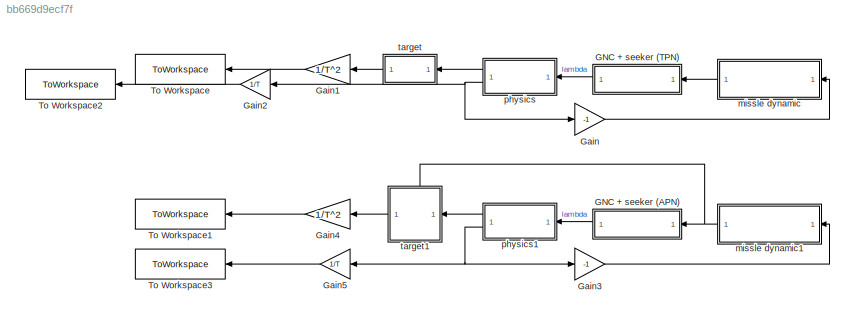
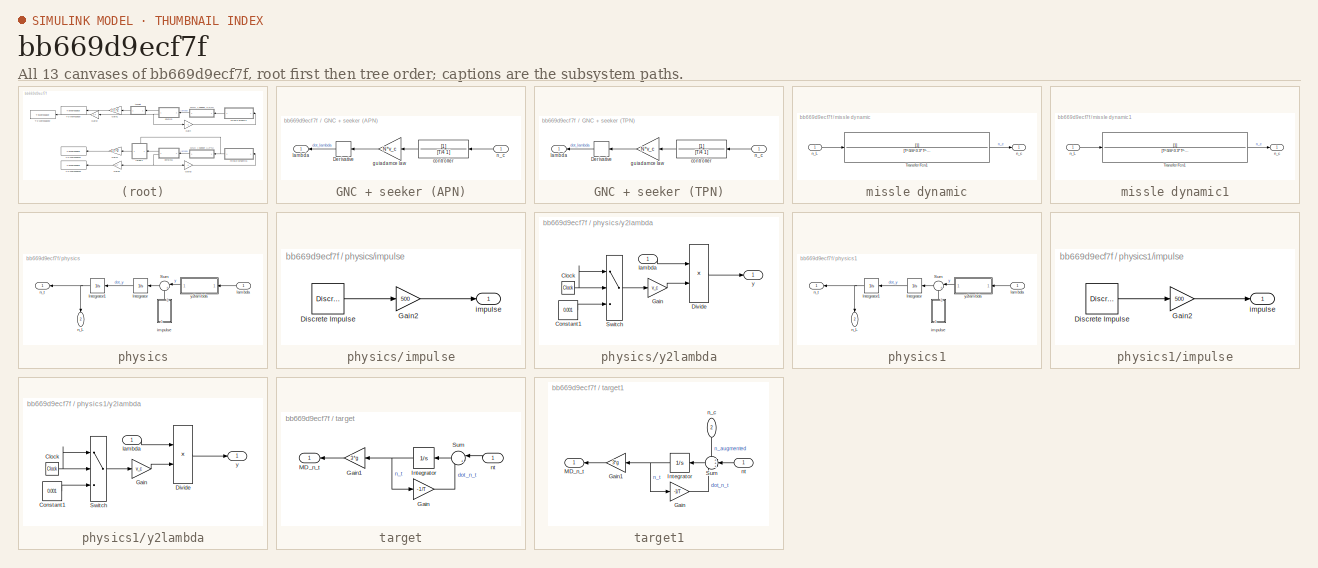
[diagram: thumbnail index - all 13 canvases of the model, root first then tree order]
MODEL slx_bb669d9ecf7f
KIND model
CONFIG AbsTol = auto
CONFIG EnableMultiTasking = off
CONFIG FixedStep = 0.002
CONFIG InitFcn = init;
CONFIG MaxStep = auto
CONFIG MinStep = auto
CONFIG RelTol = 1e-3
CONFIG SampleTimeConstraint = Unconstrained
CONFIG SolverName = ode4
CONFIG StartTime = 0.0
CONFIG StopTime = 15
BLOCK [SubSystem] GNC + seeker (APN)
  NameLocation = top
BLOCK [Derivative] GNC + seeker (APN)/Derivative
  NameLocation = top
BLOCK [TransferFcn] GNC + seeker (APN)/controller
  Denominator = [T/4 1]
  NameLocation = top
BLOCK [Gain] GNC + seeker (APN)/guiadamce law
  Gain = N*v_c
  NameLocation = top
BLOCK [Outport] GNC + seeker (APN)/lambda
  NameLocation = top
BLOCK [Inport] GNC + seeker (APN)/n_c
  NameLocation = top
BLOCK [SubSystem] GNC + seeker (TPN)
  NameLocation = top
BLOCK [Derivative] GNC + seeker (TPN)/Derivative
  NameLocation = top
BLOCK [TransferFcn] GNC + seeker (TPN)/controller
  Denominator = [T/4 1]
  NameLocation = top
BLOCK [Gain] GNC + seeker (TPN)/guiadamce law
  Gain = N*v_c
  NameLocation = top
BLOCK [Outport] GNC + seeker (TPN)/lambda
  NameLocation = top
BLOCK [Inport] GNC + seeker (TPN)/n_c
  NameLocation = top
BLOCK [Gain] Gain
  Gain = -1
BLOCK [Gain] Gain1
  Gain = 1/T^2
  NameLocation = top
BLOCK [Gain] Gain2
  Gain = 1/T
  NameLocation = top
BLOCK [Gain] Gain3
  Gain = -1
BLOCK [Gain] Gain4
  Gain = 1/T^2
  NameLocation = top
BLOCK [Gain] Gain5
  Gain = 1/T
  NameLocation = top
BLOCK [ToWorkspace] To Workspace
  FixptAsFi = on
  MaxDataPoints = inf
  NameLocation = top
  SampleTime = -1
  SaveFormat = Timeseries
  VariableName = n_t_TPN
BLOCK [ToWorkspace] To Workspace1
  FixptAsFi = on
  MaxDataPoints = inf
  NameLocation = top
  SampleTime = -1
  SaveFormat = Timeseries
  VariableName = n_t_APN
BLOCK [ToWorkspace] To Workspace2
  FixptAsFi = on
  MaxDataPoints = inf
  NameLocation = top
  SampleTime = -1
  SaveFormat = Timeseries
  VariableName = HE_TPN
BLOCK [ToWorkspace] To Workspace3
  FixptAsFi = on
  MaxDataPoints = inf
  NameLocation = top
  SampleTime = -1
  SaveFormat = Timeseries
  VariableName = HE_APN
BLOCK [SubSystem] missle dynamic
BLOCK [TransferFcn] missle dynamic/Transfer Fcn1
  Denominator = [T^3/4^3 3*T^2/4^2 3*T/4 1]
BLOCK [Inport] missle dynamic/n_L
BLOCK [Outport] missle dynamic/n_c
BLOCK [SubSystem] missle dynamic1
BLOCK [TransferFcn] missle dynamic1/Transfer Fcn1
  Denominator = [T^3/4^3 3*T^2/4^2 3*T/4 1]
BLOCK [Inport] missle dynamic1/n_L
BLOCK [Outport] missle dynamic1/n_c
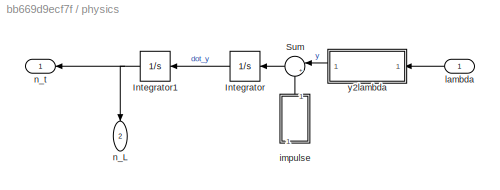
BLOCK [SubSystem] physics
  NameLocation = top
BLOCK [Integrator] physics/Integrator
  NameLocation = top
BLOCK [Integrator] physics/Integrator1
  NameLocation = top
BLOCK [Sum] physics/Sum
  Inputs = |++
  NameLocation = top
BLOCK [SubSystem] physics/impulse
  NameLocation = right
BLOCK [Reference] physics/impulse/Discrete Impulse  REF=dspsrcs4/Discrete 
Impulse
  SourceBlock = dspsrcs4/Discrete \nImpulse
  SourceType = Discrete Impulse
BLOCK [Gain] physics/impulse/Gain2
  Gain = 500
BLOCK [Outport] physics/impulse/impulse
BLOCK [Inport] physics/lambda
  NameLocation = top
BLOCK [Outport] physics/n_L
  NameLocation = left
  Port = 2
BLOCK [Outport] physics/n_t
  NameLocation = top
BLOCK [SubSystem] physics/y2lambda
  NameLocation = top
BLOCK [Clock] physics/y2lambda/Clock
BLOCK [Constant] physics/y2lambda/Constant1
  Value = 0.001
BLOCK [Product] physics/y2lambda/Divide
  Inputs = */
BLOCK [Gain] physics/y2lambda/Gain
  Gain = v_c
BLOCK [Switch] physics/y2lambda/Switch
  Criteria = u2 > Threshold
  InputSameDT = off
  SaturateOnIntegerOverflow = off
BLOCK [Inport] physics/y2lambda/lambda
BLOCK [Outport] physics/y2lambda/y
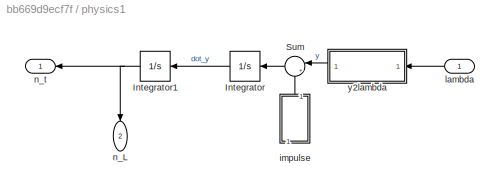
BLOCK [SubSystem] physics1
  NameLocation = top
BLOCK [Integrator] physics1/Integrator
  NameLocation = top
BLOCK [Integrator] physics1/Integrator1
  NameLocation = top
BLOCK [Sum] physics1/Sum
  Inputs = |++
  NameLocation = top
BLOCK [SubSystem] physics1/impulse
  NameLocation = right
BLOCK [Reference] physics1/impulse/Discrete Impulse  REF=dspsrcs4/Discrete 
Impulse
  SourceBlock = dspsrcs4/Discrete \nImpulse
  SourceType = Discrete Impulse
BLOCK [Gain] physics1/impulse/Gain2
  Gain = 500
BLOCK [Outport] physics1/impulse/impulse
BLOCK [Inport] physics1/lambda
  NameLocation = top
BLOCK [Outport] physics1/n_L
  NameLocation = left
  Port = 2
BLOCK [Outport] physics1/n_t
  NameLocation = top
BLOCK [SubSystem] physics1/y2lambda
  NameLocation = top
BLOCK [Clock] physics1/y2lambda/Clock
BLOCK [Constant] physics1/y2lambda/Constant1
  Value = 0.001
BLOCK [Product] physics1/y2lambda/Divide
  Inputs = */
BLOCK [Gain] physics1/y2lambda/Gain
  Gain = v_c
BLOCK [Switch] physics1/y2lambda/Switch
  Criteria = u2 > Threshold
  InputSameDT = off
  SaturateOnIntegerOverflow = off
BLOCK [Inport] physics1/y2lambda/lambda
BLOCK [Outport] physics1/y2lambda/y
BLOCK [SubSystem] target
  NameLocation = top
BLOCK [Gain] target/Gain
  Gain = -1/T
BLOCK [Gain] target/Gain1
  Gain = 3*g
  NameLocation = top
BLOCK [Integrator] target/Integrator
  NameLocation = top
BLOCK [Outport] target/MD_n_t
  NameLocation = top
BLOCK [Sum] target/Sum
  Inputs = |++
  NameLocation = top
BLOCK [Inport] target/nt
  NameLocation = top
BLOCK [SubSystem] target1
  PortSchema = {"entries":[{"content":{"sides":[{"content":{"connectorIds":["In1"]},"type":"ConnectorPlacement.EquallySpacedRectSide","uuid":"ed75f11e-c865-4004-9925-7377fa04d387"},{"content":{"connectorIds":["Out1"],"side":"RIGHT"},"type":"ConnectorPlacement.EquallySpacedRectSide","uuid":"bae2f0f6-1e21-4a13-88c5-2ae7c6156ea9"},{"content":{"connectorIds":["In2"],"side":"TOP"},"type":"ConnectorPlacement.EquallySp...<+245ch>
BLOCK [Gain] target1/Gain
  Gain = -1/T
BLOCK [Gain] target1/Gain1
  Gain = 3*g
  NameLocation = top
BLOCK [Integrator] target1/Integrator
  NameLocation = top
BLOCK [Outport] target1/MD_n_t
  NameLocation = top
BLOCK [Sum] target1/Sum
  Inputs = +++
  NameLocation = top
BLOCK [Inport] target1/n_c
  NameLocation = left
  Port = 2
BLOCK [Inport] target1/nt
  NameLocation = top
LINE GNC + seeker (APN)/Derivative:1 -> GNC + seeker (APN)/lambda:1
LINE GNC + seeker (APN)/controller:1 -> GNC + seeker (APN)/guiadamce law:1
LINE GNC + seeker (APN)/guiadamce law:1 -> GNC + seeker (APN)/Derivative:1
LINE GNC + seeker (APN)/n_c:1 -> GNC + seeker (APN)/controller:1
LINE GNC + seeker (APN):1 -> physics1:1
LINE GNC + seeker (TPN)/Derivative:1 -> GNC + seeker (TPN)/lambda:1
LINE GNC + seeker (TPN)/controller:1 -> GNC + seeker (TPN)/guiadamce law:1
LINE GNC + seeker (TPN)/guiadamce law:1 -> GNC + seeker (TPN)/Derivative:1
LINE GNC + seeker (TPN)/n_c:1 -> GNC + seeker (TPN)/controller:1
LINE GNC + seeker (TPN):1 -> physics:1
LINE Gain1:1 -> To Workspace:1
LINE Gain2:1 -> To Workspace2:1
LINE Gain3:1 -> missle dynamic1:1
LINE Gain4:1 -> To Workspace1:1
LINE Gain5:1 -> To Workspace3:1
LINE Gain:1 -> missle dynamic:1
LINE missle dynamic/Transfer Fcn1:1 -> missle dynamic/n_c:1
LINE missle dynamic/n_L:1 -> missle dynamic/Transfer Fcn1:1
LINE missle dynamic1/Transfer Fcn1:1 -> missle dynamic1/n_c:1
LINE missle dynamic1/n_L:1 -> missle dynamic1/Transfer Fcn1:1
NET missle dynamic1:1 -> GNC + seeker (APN):1, target1:2
LINE missle dynamic:1 -> GNC + seeker (TPN):1
NET physics/Integrator1:1 -> physics/n_L:1, physics/n_t:1
LINE physics/Integrator:1 -> physics/Integrator1:1
LINE physics/Sum:1 -> physics/Integrator:1
LINE physics/impulse/Discrete Impulse:1 -> physics/impulse/Gain2:1
LINE physics/impulse/Gain2:1 -> physics/impulse/impulse:1
LINE physics/impulse:1 -> physics/Sum:2
LINE physics/lambda:1 -> physics/y2lambda:1
NET physics/y2lambda/Clock:1 -> physics/y2lambda/Switch:1, physics/y2lambda/Switch:2
LINE physics/y2lambda/Constant1:1 -> physics/y2lambda/Switch:3
LINE physics/y2lambda/Divide:1 -> physics/y2lambda/y:1
LINE physics/y2lambda/Gain:1 -> physics/y2lambda/Divide:2
LINE physics/y2lambda/Switch:1 -> physics/y2lambda/Gain:1
LINE physics/y2lambda/lambda:1 -> physics/y2lambda/Divide:1
LINE physics/y2lambda:1 -> physics/Sum:1
NET physics1/Integrator1:1 -> physics1/n_L:1, physics1/n_t:1
LINE physics1/Integrator:1 -> physics1/Integrator1:1
LINE physics1/Sum:1 -> physics1/Integrator:1
LINE physics1/impulse/Discrete Impulse:1 -> physics1/impulse/Gain2:1
LINE physics1/impulse/Gain2:1 -> physics1/impulse/impulse:1
LINE physics1/impulse:1 -> physics1/Sum:2
LINE physics1/lambda:1 -> physics1/y2lambda:1
NET physics1/y2lambda/Clock:1 -> physics1/y2lambda/Switch:1, physics1/y2lambda/Switch:2
LINE physics1/y2lambda/Constant1:1 -> physics1/y2lambda/Switch:3
LINE physics1/y2lambda/Divide:1 -> physics1/y2lambda/y:1
LINE physics1/y2lambda/Gain:1 -> physics1/y2lambda/Divide:2
LINE physics1/y2lambda/Switch:1 -> physics1/y2lambda/Gain:1
LINE physics1/y2lambda/lambda:1 -> physics1/y2lambda/Divide:1
LINE physics1/y2lambda:1 -> physics1/Sum:1
LINE physics1:1 -> target1:1
NET physics1:2 -> Gain3:1, Gain5:1
LINE physics:1 -> target:1
NET physics:2 -> Gain2:1, Gain:1
LINE target/Gain1:1 -> target/MD_n_t:1
LINE target/Gain:1 -> target/Sum:2
NET target/Integrator:1 -> target/Gain1:1, target/Gain:1
LINE target/Sum:1 -> target/Integrator:1
LINE target/nt:1 -> target/Sum:1
LINE target1/Gain1:1 -> target1/MD_n_t:1
LINE target1/Gain:1 -> target1/Sum:3
NET target1/Integrator:1 -> target1/Gain1:1, target1/Gain:1
LINE target1/Sum:1 -> target1/Integrator:1
LINE target1/n_c:1 -> target1/Sum:1
LINE target1/nt:1 -> target1/Sum:2
LINE target1:1 -> Gain4:1
LINE target:1 -> Gain1:1
note: NET lines group one-source signal fan-out (src -> all destinations, sorted); 1:1 wires keep LINE
